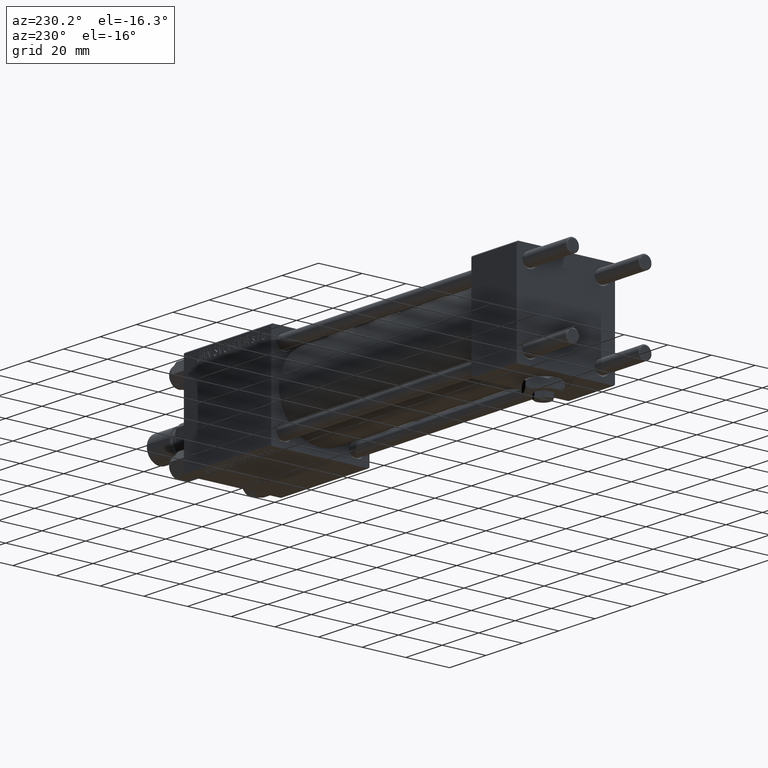
[diagram: clean part render]
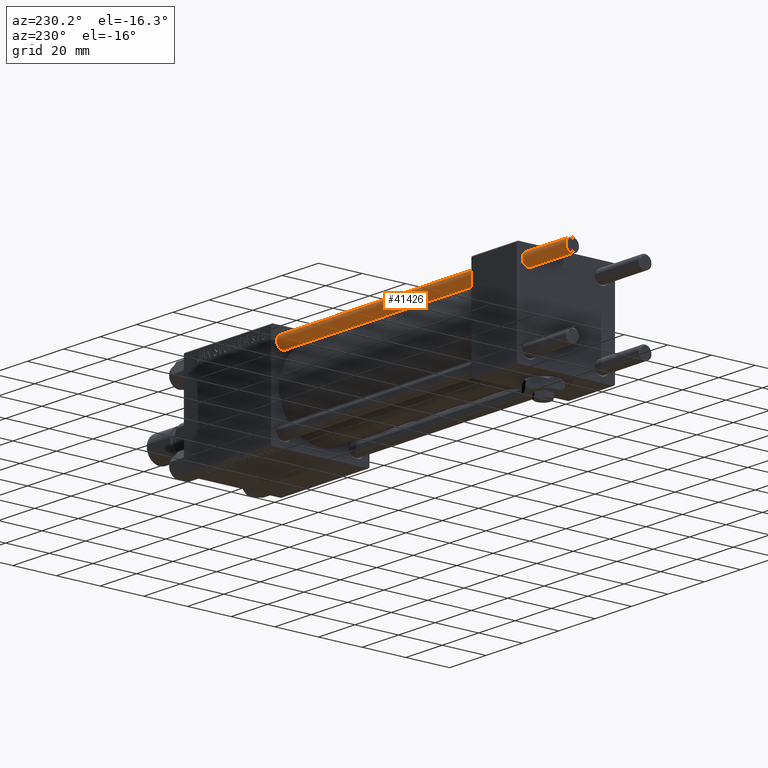
[diagram: same view with one face highlighted and labeled with its STEP entity id]
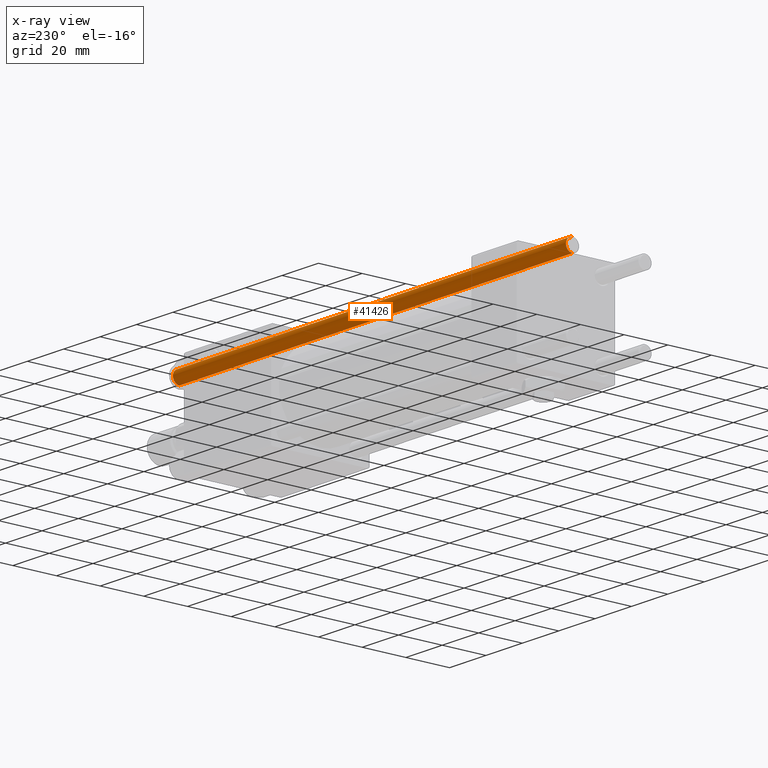
[diagram: x-ray of the same camera — body ghosted, the highlighted face saturated]
A machine part, auxiliary view. The second image highlights one B-rep face of the part: STEP entity #41426.
The next image is the same camera in x-ray: the body ghosted, the highlighted face saturated — about 0% of this face is hidden behind the body in this view.
In plain terms, the highlighted cylindrical surface (edge-blend (fillet) strip) has radius 3 mm, axis along (-1, -0, -0).
Its self-contained STEP definition (entity closure, byte-faithful):
#2122 = ORIENTED_EDGE ( 'NONE', *, *, #8598, .T. ) ;
#2259 = CYLINDRICAL_SURFACE ( 'NONE', #40482, 3.000000000000000444 ) ;
#2783 = ORIENTED_EDGE ( 'NONE', *, *, #39213, .T. ) ;
#4517 = DIRECTION ( 'NONE',  ( 1.000000000000000000, 0.000000000000000000, 0.000000000000000000 ) ) ;
#5065 = DIRECTION ( 'NONE',  ( -0.000000000000000000, -0.000000000000000000, -1.000000000000000000 ) ) ;
#6522 = EDGE_CURVE ( 'NONE', #34365, #11174, #31335, .T. ) ;
#6971 = VERTEX_POINT ( 'NONE', #20417 ) ;
#7527 = DIRECTION ( 'NONE',  ( -0.000000000000000000, -0.000000000000000000, -1.000000000000000000 ) ) ;
#7971 = AXIS2_PLACEMENT_3D ( 'NONE', #29106, #48617, #4517 ) ;
#8071 = ORIENTED_EDGE ( 'NONE', *, *, #32419, .T. ) ;
#8598 = EDGE_CURVE ( 'NONE', #34365, #6971, #9645, .T. ) ;
#9645 = CIRCLE ( 'NONE', #7971, 3.000000000000000444 ) ;
#11174 = VERTEX_POINT ( 'NONE', #47701 ) ;
#15724 = CARTESIAN_POINT ( 'NONE',  ( -3.000000000000000444, 0.000000000000000000, 217.0000000000000000 ) ) ;
#15915 = DIRECTION ( 'NONE',  ( -1.000000000000000000, 0.000000000000000000, 0.000000000000000000 ) ) ;
#18386 = FACE_OUTER_BOUND ( 'NONE', #31279, .T. ) ;
#20417 = CARTESIAN_POINT ( 'NONE',  ( 3.000000000000000444, 3.673940397442060361E-16, 216.5000000000000000 ) ) ;
#21063 = AXIS2_PLACEMENT_3D ( 'NONE', #27646, #43227, #35824 ) ;
#27646 = CARTESIAN_POINT ( 'NONE',  ( 0.000000000000000000, 0.000000000000000000, 0.5000000000000559552 ) ) ;
#29106 = CARTESIAN_POINT ( 'NONE',  ( 0.000000000000000000, 0.000000000000000000, 216.5000000000000000 ) ) ;
#31279 = EDGE_LOOP ( 'NONE', ( #2122, #8071, #2783, #41407 ) ) ;
#31335 = LINE ( 'NONE', #15724, #51712 ) ;
#32419 = EDGE_CURVE ( 'NONE', #6971, #32628, #49419, .T. ) ;
#32628 = VERTEX_POINT ( 'NONE', #44356 ) ;
#34365 = VERTEX_POINT ( 'NONE', #49638 ) ;
#35824 = DIRECTION ( 'NONE',  ( 1.000000000000000000, 0.000000000000000000, 0.000000000000000000 ) ) ;
#39213 = EDGE_CURVE ( 'NONE', #32628, #11174, #43787, .T. ) ;
#39929 = DIRECTION ( 'NONE',  ( -0.000000000000000000, -0.000000000000000000, -1.000000000000000000 ) ) ;
#40482 = AXIS2_PLACEMENT_3D ( 'NONE', #46891, #39929, #15915 ) ;
#41407 = ORIENTED_EDGE ( 'NONE', *, *, #6522, .F. ) ;
#41426 = ADVANCED_FACE ( 'NONE', ( #18386 ), #2259, .T. ) ;
#41889 = VECTOR ( 'NONE', #5065, 1000.000000000000000 ) ;
#43227 = DIRECTION ( 'NONE',  ( -0.000000000000000000, -0.000000000000000000, 1.000000000000000000 ) ) ;
#43787 = CIRCLE ( 'NONE', #21063, 3.000000000000000444 ) ;
#44356 = CARTESIAN_POINT ( 'NONE',  ( 3.000000000000000444, 3.673940397442060361E-16, 0.5000000000000559552 ) ) ;
#46891 = CARTESIAN_POINT ( 'NONE',  ( 0.000000000000000000, 0.000000000000000000, 217.0000000000000000 ) ) ;
#47701 = CARTESIAN_POINT ( 'NONE',  ( -3.000000000000000444, 0.000000000000000000, 0.5000000000000559552 ) ) ;
#48617 = DIRECTION ( 'NONE',  ( 0.000000000000000000, 0.000000000000000000, -1.000000000000000000 ) ) ;
#48906 = CARTESIAN_POINT ( 'NONE',  ( 3.000000000000000444, 3.673940397442060361E-16, 217.0000000000000000 ) ) ;
#49419 = LINE ( 'NONE', #48906, #41889 ) ;
#49638 = CARTESIAN_POINT ( 'NONE',  ( -3.000000000000000444, 0.000000000000000000, 216.5000000000000000 ) ) ;
#51712 = VECTOR ( 'NONE', #7527, 1000.000000000000000 ) ;